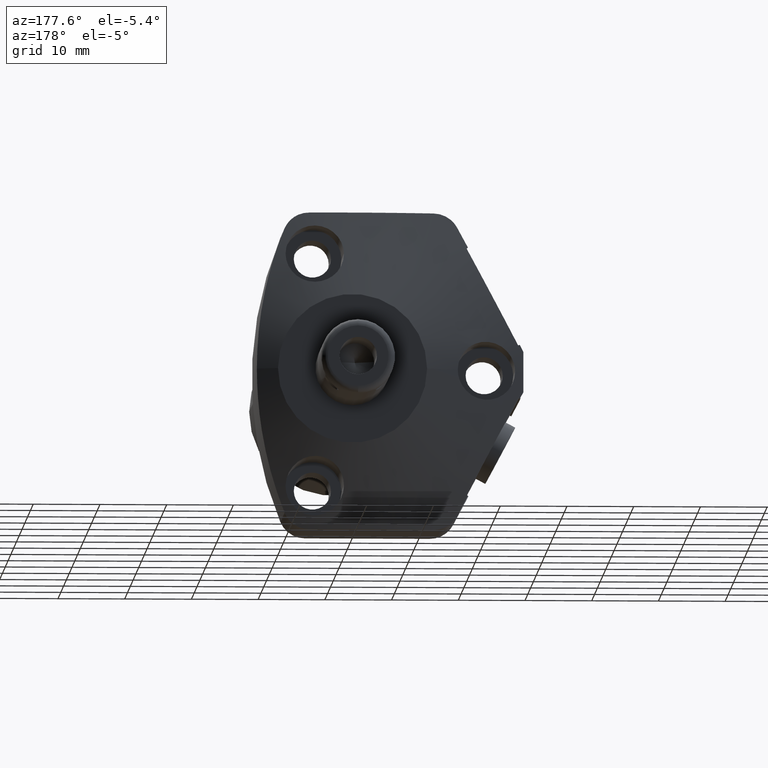
[diagram: clean part render]
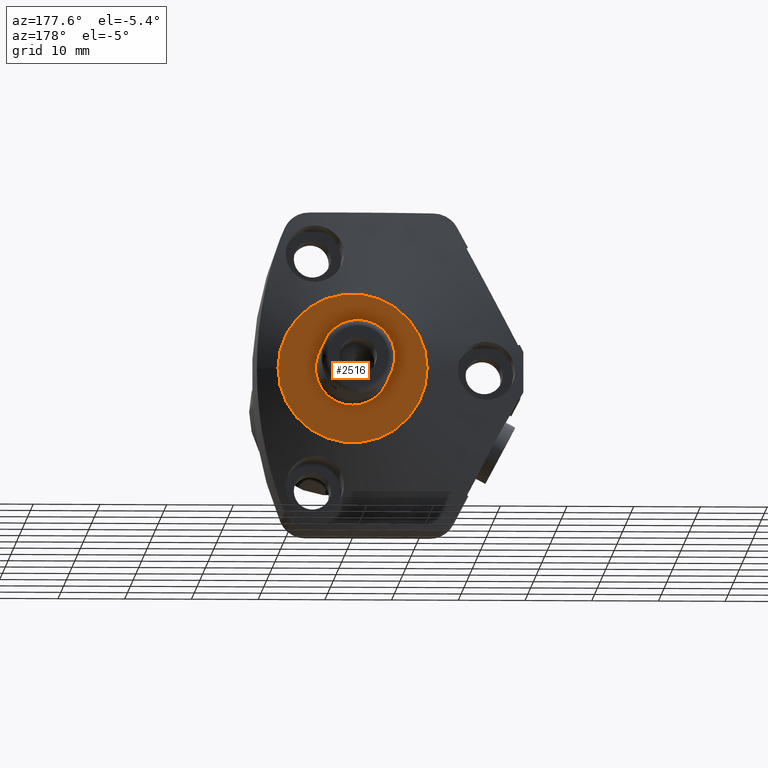
[diagram: same view with one face highlighted and labeled with its STEP entity id]
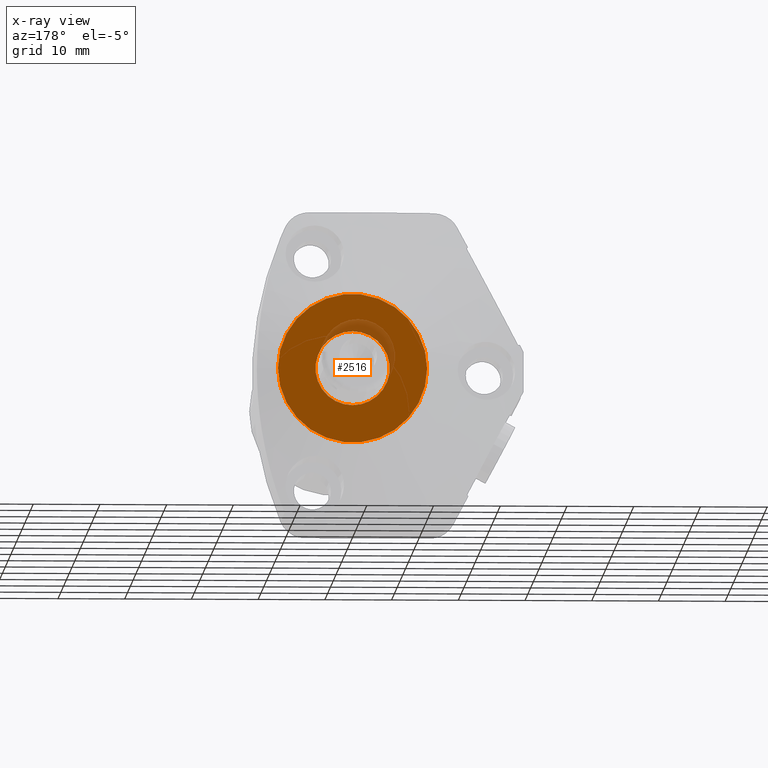
[diagram: x-ray of the same camera — body ghosted, the highlighted face saturated]
A machine part, auxiliary view. The second image highlights one B-rep face of the part: STEP entity #2516.
The next image is the same camera in x-ray: the body ghosted, the highlighted face saturated — about 8% of this face is hidden behind the body in this view.
In plain terms, the highlighted planar face has unit normal (0, -1, 0).
Its self-contained STEP definition (entity closure, byte-faithful):
#156=CARTESIAN_POINT('',(0.E0,7.5E-1,0.E0));
#157=DIRECTION('',(0.E0,-1.E0,0.E0));
#158=DIRECTION('',(-1.E0,0.E0,0.E0));
#159=AXIS2_PLACEMENT_3D('',#156,#157,#158);
#164=CARTESIAN_POINT('',(0.E0,7.5E-1,0.E0));
#165=DIRECTION('',(0.E0,-1.E0,0.E0));
#166=DIRECTION('',(1.E0,0.E0,0.E0));
#167=AXIS2_PLACEMENT_3D('',#164,#165,#166);
#172=CARTESIAN_POINT('',(0.E0,7.5E-1,0.E0));
#173=DIRECTION('',(0.E0,1.E0,0.E0));
#174=DIRECTION('',(0.E0,0.E0,1.E0));
#175=AXIS2_PLACEMENT_3D('',#172,#173,#174);
#180=CARTESIAN_POINT('',(0.E0,7.5E-1,0.E0));
#181=DIRECTION('',(0.E0,1.E0,0.E0));
#182=DIRECTION('',(0.E0,0.E0,-1.E0));
#183=AXIS2_PLACEMENT_3D('',#180,#181,#182);
#2094=CARTESIAN_POINT('',(-4.4E-1,7.5E-1,0.E0));
#2095=CARTESIAN_POINT('',(4.4E-1,7.5E-1,0.E0));
#2096=VERTEX_POINT('',#2094);
#2097=VERTEX_POINT('',#2095);
#2200=CARTESIAN_POINT('',(0.E0,7.5E-1,2.1875E-1));
#2201=CARTESIAN_POINT('',(0.E0,7.5E-1,-2.1875E-1));
#2202=VERTEX_POINT('',#2200);
#2203=VERTEX_POINT('',#2201);
#2500=CARTESIAN_POINT('',(0.E0,7.5E-1,0.E0));
#2501=DIRECTION('',(0.E0,-1.E0,0.E0));
#2502=DIRECTION('',(-1.E0,0.E0,0.E0));
#2503=AXIS2_PLACEMENT_3D('',#2500,#2501,#2502);
#2504=PLANE('',#2503);
#2506=ORIENTED_EDGE('',*,*,#2505,.T.);
#2508=ORIENTED_EDGE('',*,*,#2507,.T.);
#2509=EDGE_LOOP('',(#2506,#2508));
#2510=FACE_OUTER_BOUND('',#2509,.F.);
#2511=ORIENTED_EDGE('',*,*,#2466,.T.);
#2513=ORIENTED_EDGE('',*,*,#2512,.T.);
#2514=EDGE_LOOP('',(#2511,#2513));
#2515=FACE_BOUND('',#2514,.F.);
#160=CIRCLE('',#159,4.4E-1);
#168=CIRCLE('',#167,4.4E-1);
#176=CIRCLE('',#175,2.1875E-1);
#184=CIRCLE('',#183,2.1875E-1);
#2466=EDGE_CURVE('',#2202,#2203,#176,.T.);
#2505=EDGE_CURVE('',#2096,#2097,#160,.T.);
#2507=EDGE_CURVE('',#2097,#2096,#168,.T.);
#2512=EDGE_CURVE('',#2203,#2202,#184,.T.);
#2516=ADVANCED_FACE('',(#2510,#2515),#2504,.F.);